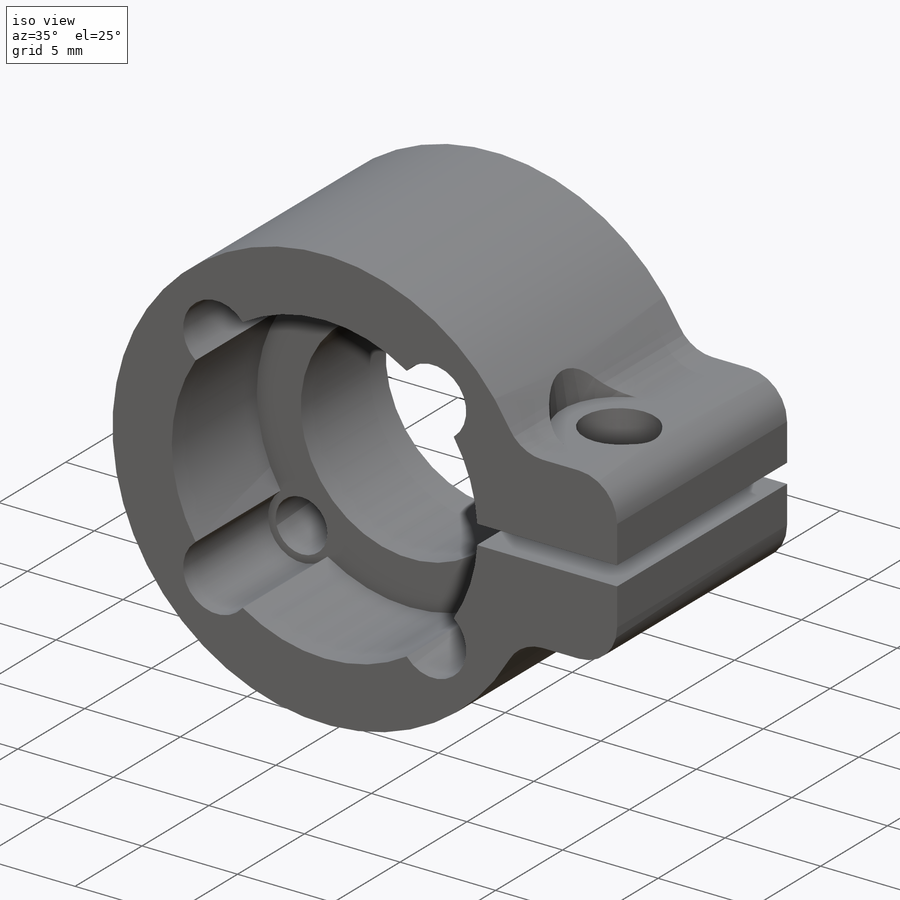
[diagram: iso view]
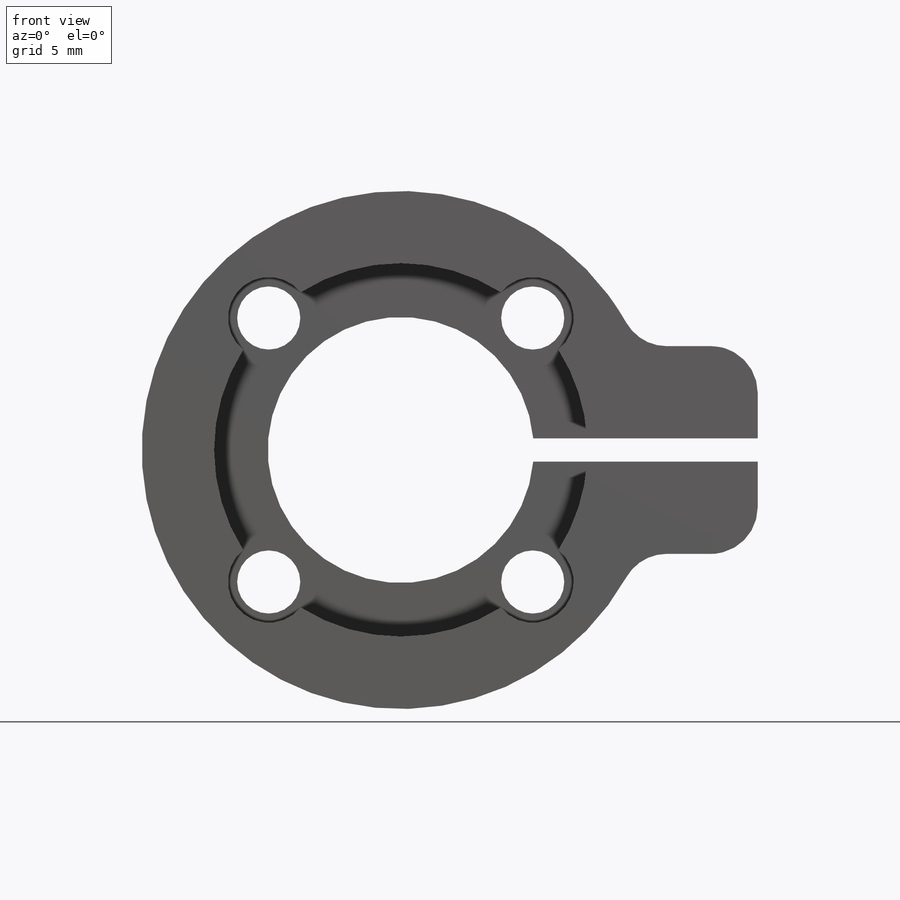
[diagram: front view]
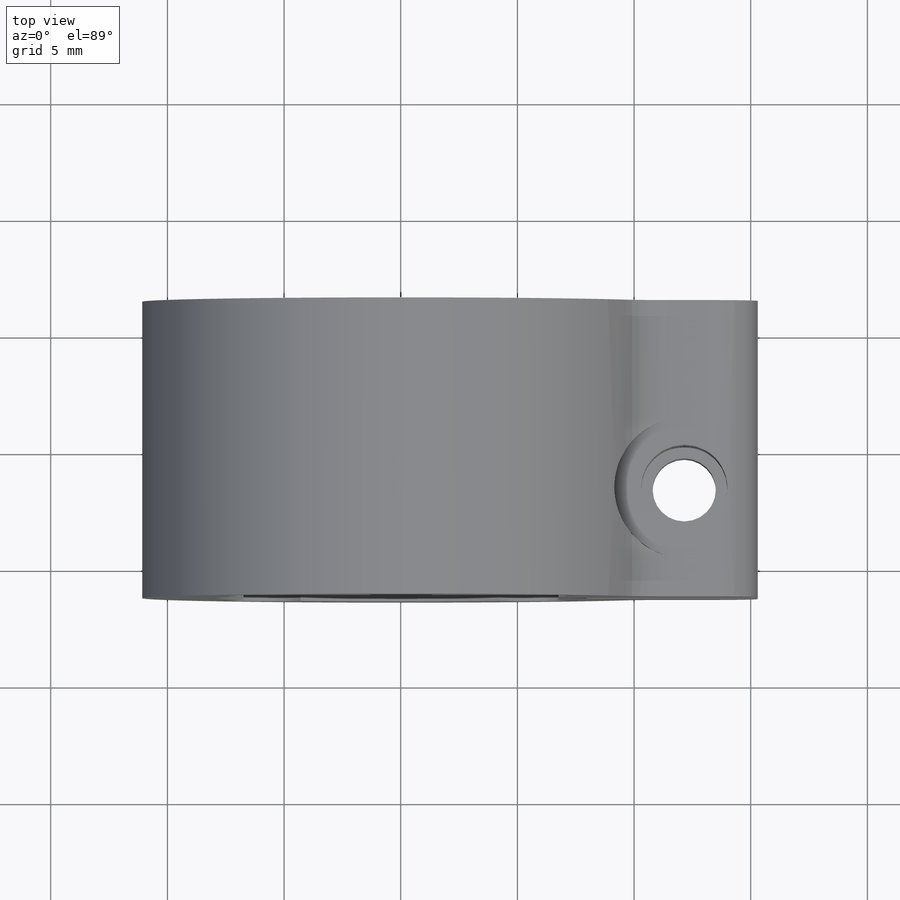
[diagram: top view]
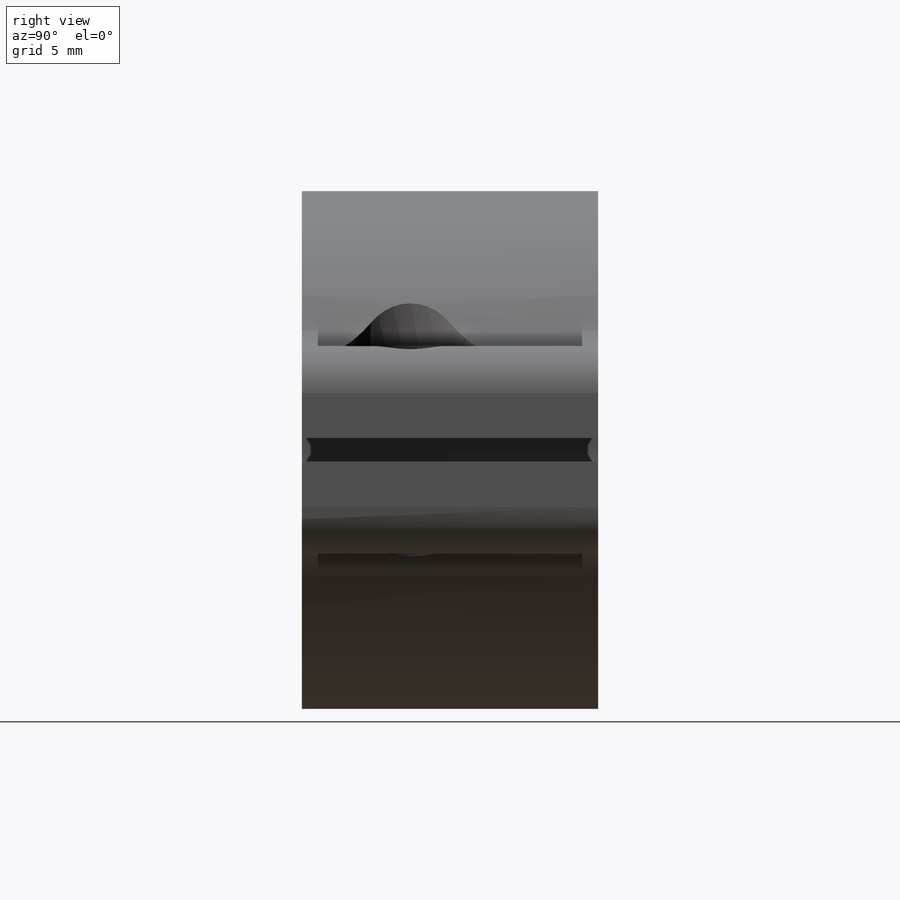
[diagram: right view]
SOLIDWORKS PART (.sldprt)
format: sldprt  version: not decoded by parser v0  size: 224,768 bytes
history: native  units: mm
features: thread x5, material x1, plane x1 (+13 scaffold rows collapsed)
feature tree (20):
  scaffold x13  (default folders/planes/origin — collapsed)
  material  "6061 Alloy"
  thread  "Cosmetic Thread1"  Diameter=3.5052mm  [1 undecoded]
  thread  "Cosmetic Thread2"  Diameter=3.5052mm  [1 undecoded]
  thread  "Cosmetic Thread3"  Diameter=3.5052mm  [1 undecoded]
  thread  "Cosmetic Thread4"  Diameter=3.5052mm  [1 undecoded]
  thread  "Cosmetic Thread5"  Diameter=3.5052mm  [1 undecoded]
  plane  "Plane1"
decode coverage: 5 of 5 modeling features carry decoded parameters
note: 5 parameter values undecoded
note: suppression state not decoded; provenance and decode notes live in map.json
